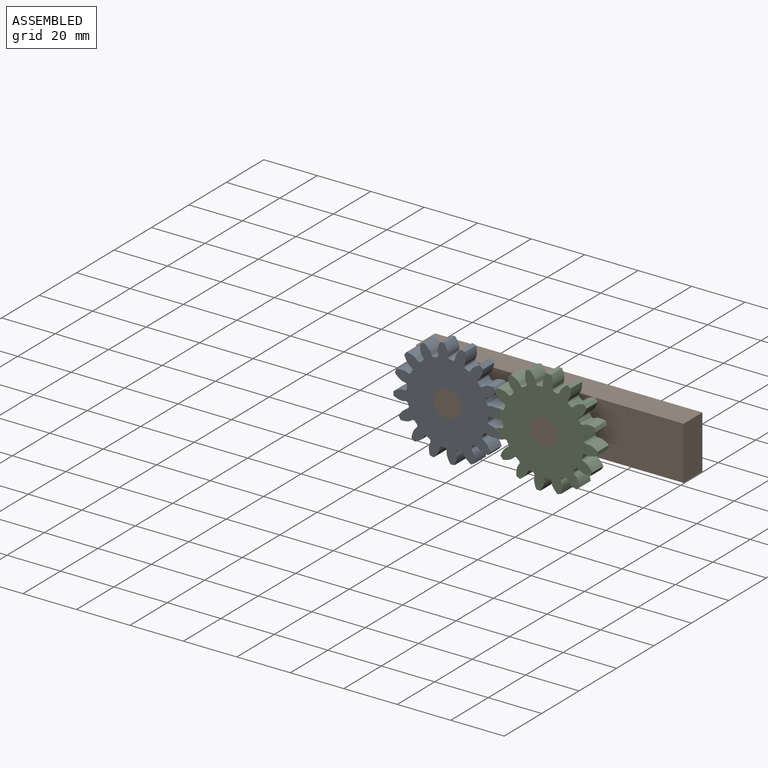
[diagram: assembled view]
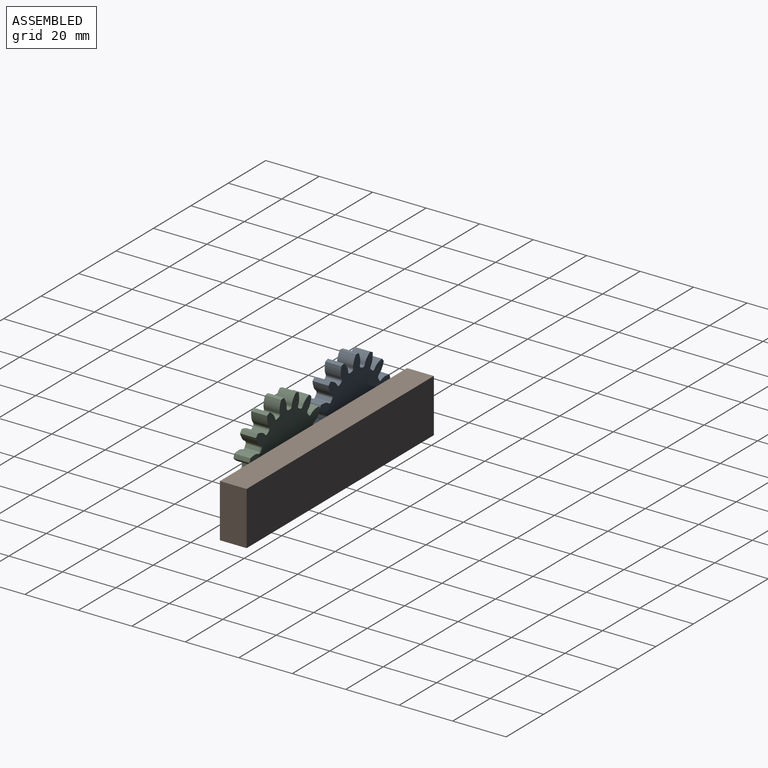
[diagram: assembled view, second angle]
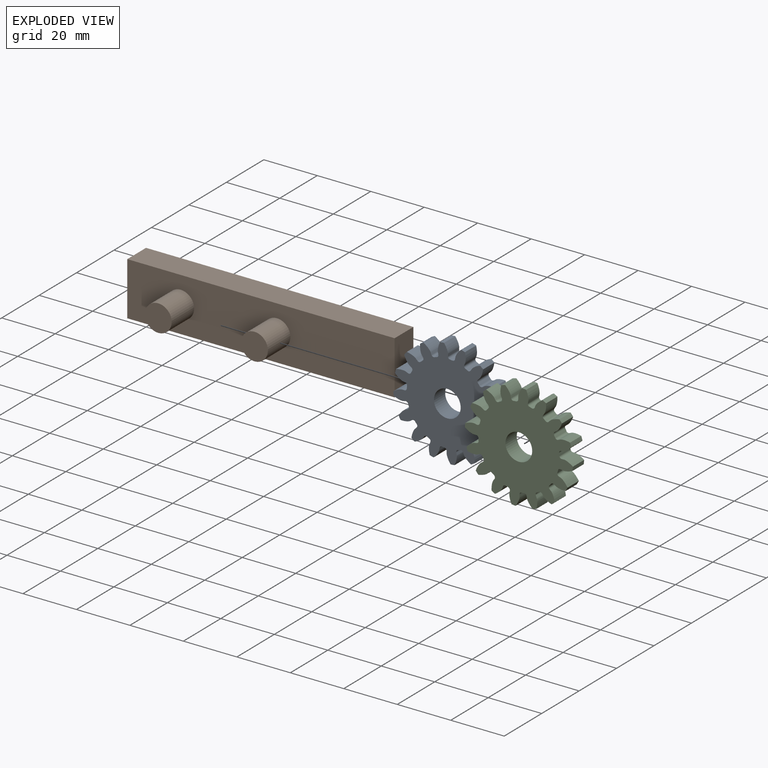
[diagram: exploded view]
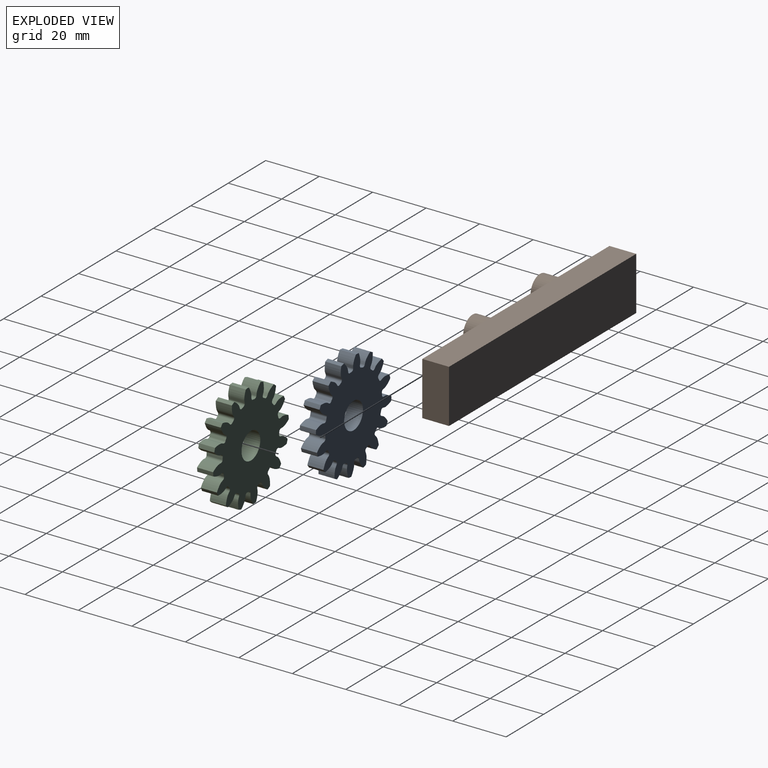
[diagram: exploded view, second angle]
ASSEMBLY  parts=3 mates=2
PART A: 99 faces, bbox 40x6x40 mm
  f0: extruded ~6x4.04mm, area 27.4mm2, adj f64,f65,f66,f67
  f1: cylinder r=15.19mm len=6mm, axis (0,1,0), area 5.6mm2, adj f65,f66,f67,f68
  f2: extruded ~6x4.04mm, area 27.4mm2, adj f3,f65,f66,f68
  f3: cylinder r=20.25mm len=6mm, axis (0,1,0), area 9mm2, adj f2,f4,f65,f66
  f4: extruded ~6x4.45mm, area 27.4mm2, adj f3,f65,f66,f69
  f5: cylinder r=15.19mm len=6mm, axis (0,1,0), area 5.6mm2, adj f65,f66,f69,f70
  f6: extruded ~6x3.29mm, area 27.4mm2, adj f7,f65,f66,f70
  f7: cylinder r=20.25mm len=6mm, axis (0,1,0), area 9mm2, adj f6,f8,f65,f66
  f8: extruded ~6x4.19mm, area 27.4mm2, adj f7,f65,f66,f71
  f9: cylinder r=15.19mm len=6mm, axis (0,1,0), area 5.6mm2, adj f65,f66,f71,f72
  f10: extruded ~6x4.19mm, area 27.4mm2, adj f11,f65,f66,f72
  f11: cylinder r=20.25mm len=6mm, axis (0,1,0), area 9mm2, adj f10,f12,f65,f66
  f12: extruded ~6x3.29mm, area 27.4mm2, adj f11,f65,f66,f73
  f13: cylinder r=15.19mm len=6mm, axis (0,1,0), area 5.6mm2, adj f65,f66,f73,f74
  f14: extruded ~6x4.45mm, area 27.4mm2, adj f15,f65,f66,f74
  f15: cylinder r=20.25mm len=6mm, axis (0,1,0), area 9mm2, adj f14,f16,f65,f66
  f16: extruded ~6x4.04mm, area 27.4mm2, adj f15,f65,f66,f75
  f17: cylinder r=15.19mm len=6mm, axis (0,1,0), area 5.6mm2, adj f65,f66,f75,f76
  f18: extruded ~6x4.04mm, area 27.4mm2, adj f19,f65,f66,f76
  f19: cylinder r=20.25mm len=6mm, axis (0,1,0), area 9mm2, adj f18,f20,f65,f66
  f20: extruded ~6x4.45mm, area 27.4mm2, adj f19,f65,f66,f77
  f21: cylinder r=15.19mm len=6mm, axis (0,1,0), area 5.6mm2, adj f65,f66,f77,f78
  f22: extruded ~6x3.29mm, area 27.4mm2, adj f23,f65,f66,f78
  f23: cylinder r=20.25mm len=6mm, axis (0,1,0), area 9mm2, adj f22,f24,f65,f66
  f24: extruded ~6x4.19mm, area 27.4mm2, adj f23,f65,f66,f79
  f25: cylinder r=15.19mm len=6mm, axis (0,1,0), area 5.6mm2, adj f65,f66,f79,f80
  f26: extruded ~6x4.19mm, area 27.4mm2, adj f27,f65,f66,f80
  f27: cylinder r=20.25mm len=6mm, axis (0,1,0), area 9mm2, adj f26,f28,f65,f66
  f28: extruded ~6x3.29mm, area 27.4mm2, adj f27,f65,f66,f81
  f29: cylinder r=15.19mm len=6mm, axis (0,1,0), area 5.6mm2, adj f65,f66,f81,f82
  f30: extruded ~6x4.45mm, area 27.4mm2, adj f31,f65,f66,f82
  f31: cylinder r=20.25mm len=6mm, axis (0,1,0), area 9mm2, adj f30,f32,f65,f66
  f32: extruded ~6x4.04mm, area 27.4mm2, adj f31,f65,f66,f83
  f33: cylinder r=15.19mm len=6mm, axis (0,1,0), area 5.6mm2, adj f65,f66,f83,f84
  f34: extruded ~6x4.04mm, area 27.4mm2, adj f35,f65,f66,f84
  f35: cylinder r=20.25mm len=6mm, axis (0,1,0), area 9mm2, adj f34,f36,f65,f66
  f36: extruded ~6x4.45mm, area 27.4mm2, adj f35,f65,f66,f85
  f37: cylinder r=15.19mm len=6mm, axis (0,1,0), area 5.6mm2, adj f65,f66,f85,f86
  f38: extruded ~6x3.29mm, area 27.4mm2, adj f39,f65,f66,f86
  f39: cylinder r=20.25mm len=6mm, axis (0,1,0), area 9mm2, adj f38,f40,f65,f66
  f40: extruded ~6x4.19mm, area 27.4mm2, adj f39,f65,f66,f87
  f41: cylinder r=15.19mm len=6mm, axis (0,1,0), area 5.6mm2, adj f65,f66,f87,f88
  f42: extruded ~6x4.19mm, area 27.4mm2, adj f43,f65,f66,f88
  f43: cylinder r=20.25mm len=6mm, axis (0,1,0), area 9mm2, adj f42,f44,f65,f66
  f44: extruded ~6x3.29mm, area 27.4mm2, adj f43,f65,f66,f89
  f45: cylinder r=15.19mm len=6mm, axis (0,1,0), area 5.6mm2, adj f65,f66,f89,f90
  f46: extruded ~6x4.45mm, area 27.4mm2, adj f47,f65,f66,f90
  f47: cylinder r=20.25mm len=6mm, axis (0,1,0), area 9mm2, adj f46,f48,f65,f66
  f48: extruded ~6x4.04mm, area 27.4mm2, adj f47,f65,f66,f91
  f49: cylinder r=15.19mm len=6mm, axis (0,1,0), area 5.6mm2, adj f65,f66,f91,f92
  f50: extruded ~6x4.04mm, area 27.4mm2, adj f51,f65,f66,f92
  f51: cylinder r=20.25mm len=6mm, axis (0,1,0), area 9mm2, adj f50,f52,f65,f66
  f52: extruded ~6x4.45mm, area 27.4mm2, adj f51,f65,f66,f93
  f53: cylinder r=15.19mm len=6mm, axis (0,1,0), area 5.6mm2, adj f65,f66,f93,f94
  f54: extruded ~6x3.29mm, area 27.4mm2, adj f55,f65,f66,f94
  f55: cylinder r=20.25mm len=6mm, axis (0,1,0), area 9mm2, adj f54,f56,f65,f66
  f56: extruded ~6x4.19mm, area 27.4mm2, adj f55,f65,f66,f95
  f57: cylinder r=15.19mm len=6mm, axis (0,1,0), area 5.6mm2, adj f65,f66,f95,f96
  f58: extruded ~6x4.19mm, area 27.4mm2, adj f59,f65,f66,f96
  f59: cylinder r=20.25mm len=6mm, axis (0,1,0), area 9mm2, adj f58,f60,f65,f66
  f60: extruded ~6x3.29mm, area 27.4mm2, adj f59,f65,f66,f97
  f61: cylinder r=15.19mm len=6mm, axis (0,1,0), area 5.6mm2, adj f65,f66,f97,f98
  f62: extruded ~6x4.45mm, area 27.4mm2, adj f64,f65,f66,f98
  f63: cylinder r=5mm len=10mm, axis (0,1,0), area 188.5mm2, adj f65,f66
  f64: cylinder r=20.25mm len=6mm, axis (0,1,0), area 9mm2, adj f0,f62,f65,f66
  f65: plane 40.04x40.04mm, normal (0,-1,0), area 911.2mm2, adj f0,f1,f2,f3,f4,f5,f6,f7
  f66: plane 40.04x40.04mm, normal (0,1,0), area 911.2mm2, adj f0,f1,f2,f3,f4,f5,f6,f7
  f67: cylinder r=0.84mm len=6mm, axis (0,1,0), area 7.7mm2, adj f0,f1,f65,f66
  f68: cylinder r=0.84mm len=6mm, axis (0,1,0), area 7.7mm2, adj f1,f2,f65,f66
  f69: cylinder r=0.84mm len=6mm, axis (0,1,0), area 7.7mm2, adj f4,f5,f65,f66
  f70: cylinder r=0.84mm len=6mm, axis (0,1,0), area 7.7mm2, adj f5,f6,f65,f66
  f71: cylinder r=0.84mm len=6mm, axis (0,1,0), area 7.7mm2, adj f8,f9,f65,f66
  f72: cylinder r=0.84mm len=6mm, axis (0,1,0), area 7.7mm2, adj f9,f10,f65,f66
  f73: cylinder r=0.84mm len=6mm, axis (0,1,0), area 7.7mm2, adj f12,f13,f65,f66
  f74: cylinder r=0.84mm len=6mm, axis (0,1,0), area 7.7mm2, adj f13,f14,f65,f66
  f75: cylinder r=0.84mm len=6mm, axis (0,1,0), area 7.7mm2, adj f16,f17,f65,f66
  f76: cylinder r=0.84mm len=6mm, axis (0,1,0), area 7.7mm2, adj f17,f18,f65,f66
  f77: cylinder r=0.84mm len=6mm, axis (0,1,0), area 7.7mm2, adj f20,f21,f65,f66
  f78: cylinder r=0.84mm len=6mm, axis (0,1,0), area 7.7mm2, adj f21,f22,f65,f66
  f79: cylinder r=0.84mm len=6mm, axis (0,1,0), area 7.7mm2, adj f24,f25,f65,f66
  f80: cylinder r=0.84mm len=6mm, axis (0,1,0), area 7.7mm2, adj f25,f26,f65,f66
  f81: cylinder r=0.84mm len=6mm, axis (0,1,0), area 7.7mm2, adj f28,f29,f65,f66
  f82: cylinder r=0.84mm len=6mm, axis (0,1,0), area 7.7mm2, adj f29,f30,f65,f66
  f83: cylinder r=0.84mm len=6mm, axis (0,1,0), area 7.7mm2, adj f32,f33,f65,f66
  f84: cylinder r=0.84mm len=6mm, axis (0,1,0), area 7.7mm2, adj f33,f34,f65,f66
  f85: cylinder r=0.84mm len=6mm, axis (0,1,0), area 7.7mm2, adj f36,f37,f65,f66
  f86: cylinder r=0.84mm len=6mm, axis (0,1,0), area 7.7mm2, adj f37,f38,f65,f66
  f87: cylinder r=0.84mm len=6mm, axis (0,1,0), area 7.7mm2, adj f40,f41,f65,f66
  f88: cylinder r=0.84mm len=6mm, axis (0,1,0), area 7.7mm2, adj f41,f42,f65,f66
  f89: cylinder r=0.84mm len=6mm, axis (0,1,0), area 7.7mm2, adj f44,f45,f65,f66
  f90: cylinder r=0.84mm len=6mm, axis (0,1,0), area 7.7mm2, adj f45,f46,f65,f66
  f91: cylinder r=0.84mm len=6mm, axis (0,1,0), area 7.7mm2, adj f48,f49,f65,f66
  f92: cylinder r=0.84mm len=6mm, axis (0,1,0), area 7.7mm2, adj f49,f50,f65,f66
  f93: cylinder r=0.84mm len=6mm, axis (0,1,0), area 7.7mm2, adj f52,f53,f65,f66
  f94: cylinder r=0.84mm len=6mm, axis (0,1,0), area 7.7mm2, adj f53,f54,f65,f66
  f95: cylinder r=0.84mm len=6mm, axis (0,1,0), area 7.7mm2, adj f56,f57,f65,f66
  f96: cylinder r=0.84mm len=6mm, axis (0,1,0), area 7.7mm2, adj f57,f58,f65,f66
  f97: cylinder r=0.84mm len=6mm, axis (0,1,0), area 7.7mm2, adj f60,f61,f65,f66
  f98: cylinder r=0.84mm len=6mm, axis (0,1,0), area 7.7mm2, adj f61,f62,f65,f66
PART B: 10 faces, bbox 100x22x20 mm
  f0: plane 20x10mm, normal (1,0,0), area 200mm2, adj f1,f3,f4,f5
  f1: plane 100x10mm, normal (0,0,1), area 1000mm2, adj f0,f2,f4,f5
  f2: plane 20x10mm, normal (-1,0,0), area 200mm2, adj f1,f3,f4,f5
  f3: plane 100x10mm, normal (0,0,-1), area 1000mm2, adj f0,f2,f4,f5
  f4: plane 100x20mm, normal (0,-1,0), area 1842.9mm2, adj f0,f1,f2,f3,f6,f8
  f5: plane 100x20mm, normal (0,1,0), area 2000mm2, adj f0,f1,f2,f3
  f6: cylinder r=5mm len=12mm, axis (0,1,0), area 377mm2, adj f4,f7
  f7: plane 10x10mm, normal (0,-1,0), area 78.5mm2, adj f6
  f8: cylinder r=5mm len=12mm, axis (0,1,0), area 377mm2, adj f4,f9
  f9: plane 10x10mm, normal (0,-1,0), area 78.5mm2, adj f8
PART C: same geometry as A
PLACE A rot(axis=(0,1,0),5.6deg) t=(14.39,-5,-27.05)mm
PLACE B t=(44.39,11,-27.05)mm fixed
PLACE C rot(axis=(0,-1,0),5.6deg) t=(50.39,-5,-27.05)mm
MATE revolute A.f3 <-> B.f6  axis (0,-1,0) through (14.39,-11,-27.05)mm
MATE revolute C.f3 <-> B.f8  axis (0,-1,0) through (50.39,-11,-27.05)mm
